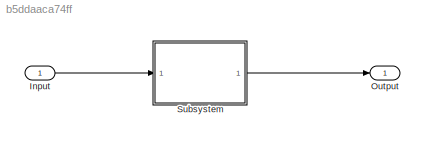
MODEL slx_b5ddaaca74ff
KIND model
CONFIG AbsTol = auto
CONFIG EnableMultiTasking = off
CONFIG FixedStep = auto
CONFIG MaxStep = auto
CONFIG MinStep = auto
CONFIG RelTol = 1e-3
CONFIG SampleTimeConstraint = Unconstrained
CONFIG Solver = VariableStepAuto
CONFIG SolverName = VariableStepAuto
CONFIG StartTime = 0.0
CONFIG StopTime = 10.0
BLOCK [Inport] Input
BLOCK [Outport] Output
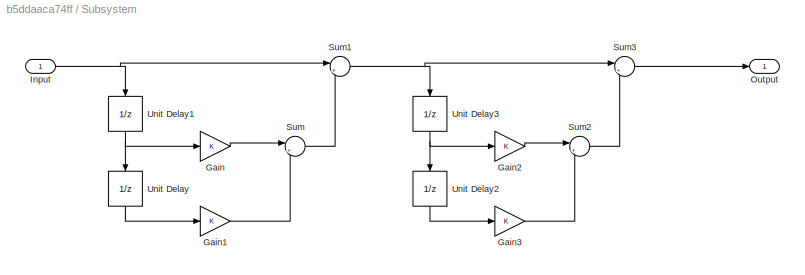
BLOCK [SubSystem] Subsystem
  Ports = [1, 1]
  RequestExecContextInheritance = off
  TreatAsAtomicUnit = on
BLOCK [Gain] Subsystem/Gain
BLOCK [Gain] Subsystem/Gain1
BLOCK [Gain] Subsystem/Gain2
BLOCK [Gain] Subsystem/Gain3
BLOCK [Inport] Subsystem/Input
BLOCK [Outport] Subsystem/Output
BLOCK [Sum] Subsystem/Sum
  Inputs = |++
  Ports = [2, 1]
BLOCK [Sum] Subsystem/Sum1
  Inputs = |++
  Ports = [2, 1]
BLOCK [Sum] Subsystem/Sum2
  Inputs = |++
  Ports = [2, 1]
BLOCK [Sum] Subsystem/Sum3
  Inputs = |++
  Ports = [2, 1]
BLOCK [UnitDelay] Subsystem/Unit Delay
  HasFrameUpgradeWarning = on
  NameLocation = left
  SampleTime = -1
BLOCK [UnitDelay] Subsystem/Unit Delay1
  HasFrameUpgradeWarning = on
  NameLocation = left
  SampleTime = -1
BLOCK [UnitDelay] Subsystem/Unit Delay2
  HasFrameUpgradeWarning = on
  NameLocation = left
  SampleTime = -1
BLOCK [UnitDelay] Subsystem/Unit Delay3
  HasFrameUpgradeWarning = on
  NameLocation = left
  SampleTime = -1
LINE Input:1 -> Subsystem:1
LINE Subsystem/Gain1:1 -> Subsystem/Sum:2
LINE Subsystem/Gain2:1 -> Subsystem/Sum2:1
LINE Subsystem/Gain3:1 -> Subsystem/Sum2:2
LINE Subsystem/Gain:1 -> Subsystem/Sum:1
NET Subsystem/Input:1 -> Subsystem/Sum1:1, Subsystem/Unit Delay1:1
NET Subsystem/Sum1:1 -> Subsystem/Sum3:1, Subsystem/Unit Delay3:1
LINE Subsystem/Sum2:1 -> Subsystem/Sum3:2
LINE Subsystem/Sum3:1 -> Subsystem/Output:1
LINE Subsystem/Sum:1 -> Subsystem/Sum1:2
NET Subsystem/Unit Delay1:1 -> Subsystem/Gain:1, Subsystem/Unit Delay:1
LINE Subsystem/Unit Delay2:1 -> Subsystem/Gain3:1
NET Subsystem/Unit Delay3:1 -> Subsystem/Gain2:1, Subsystem/Unit Delay2:1
LINE Subsystem/Unit Delay:1 -> Subsystem/Gain1:1
LINE Subsystem:1 -> Output:1
note: NET lines group one-source signal fan-out (src -> all destinations, sorted); 1:1 wires keep LINE
